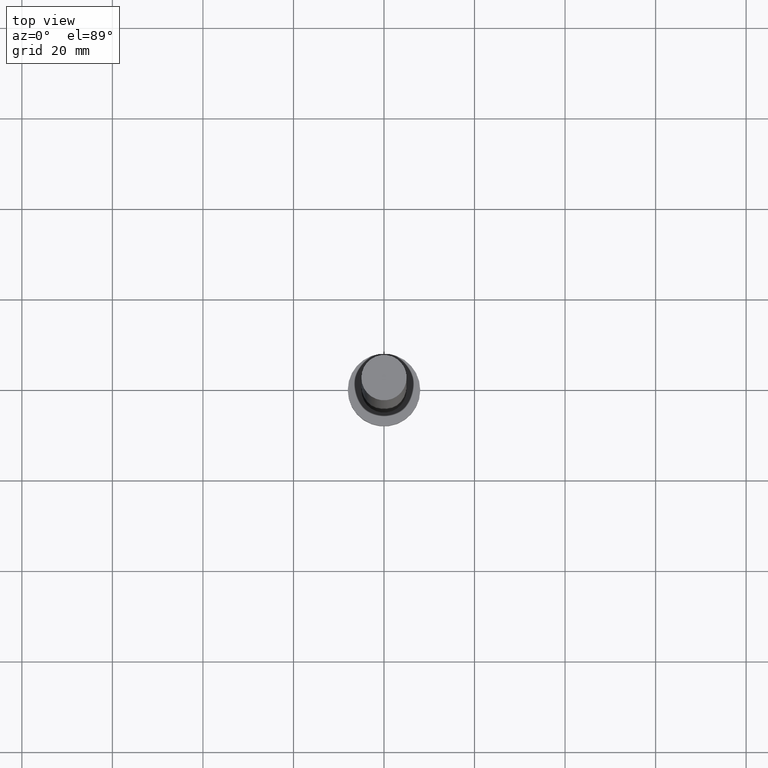
[diagram: clean part render]
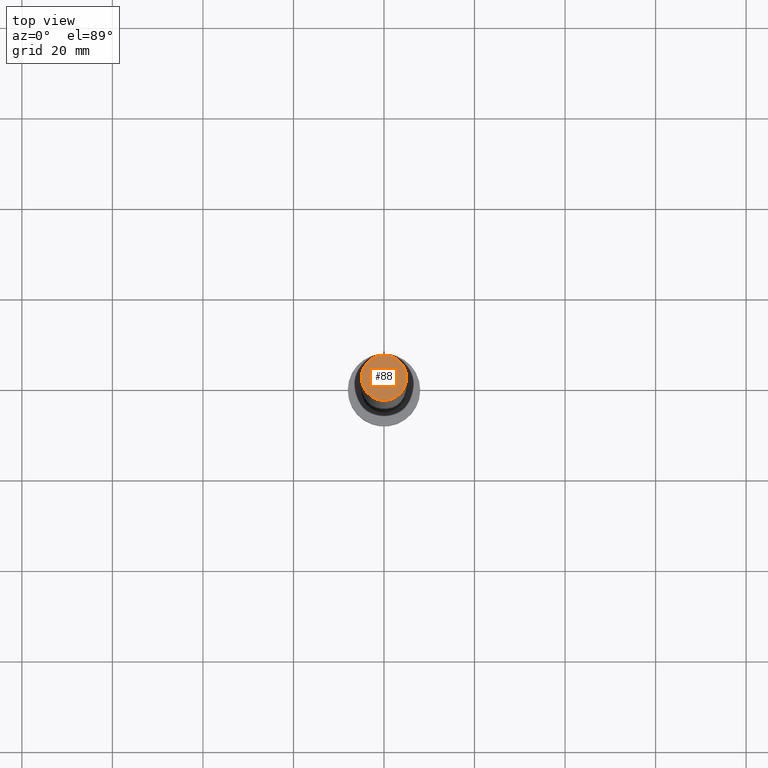
[diagram: same view with one face highlighted and labeled with its STEP entity id]
A machine part, top view. The second image highlights one B-rep face of the part: STEP entity #88.
In plain terms, the highlighted planar face has unit normal (0, 0, 1).
Its self-contained STEP definition (entity closure, byte-faithful):
#7 = ORIENTED_EDGE ( 'NONE', *, *, #150, .T. ) ;
#29 = ORIENTED_EDGE ( 'NONE', *, *, #64, .T. ) ;
#37 = DIRECTION ( 'NONE',  ( 0.000000000000000000, 0.000000000000000000, 1.000000000000000000 ) ) ;
#38 = CARTESIAN_POINT ( 'NONE',  ( 0.000000000000000000, 0.000000000000000000, 160.0000000000000000 ) ) ;
#56 = VERTEX_POINT ( 'NONE', #92 ) ;
#64 = EDGE_CURVE ( 'NONE', #56, #187, #161, .T. ) ;
#67 = AXIS2_PLACEMENT_3D ( 'NONE', #38, #37, #237 ) ;
#72 = EDGE_LOOP ( 'NONE', ( #7, #29 ) ) ;
#88 = ADVANCED_FACE ( 'NONE', ( #172 ), #245, .T. ) ;
#90 = AXIS2_PLACEMENT_3D ( 'NONE', #208, #244, #173 ) ;
#92 = CARTESIAN_POINT ( 'NONE',  ( 5.000000000000000000, 6.123233995736766282E-16, 160.0000000000000000 ) ) ;
#96 = CARTESIAN_POINT ( 'NONE',  ( 0.000000000000000000, 0.000000000000000000, 160.0000000000000000 ) ) ;
#122 = CIRCLE ( 'NONE', #67, 5.000000000000000000 ) ;
#150 = EDGE_CURVE ( 'NONE', #187, #56, #122, .T. ) ;
#157 = DIRECTION ( 'NONE',  ( 1.000000000000000000, 0.000000000000000000, -0.000000000000000000 ) ) ;
#161 = CIRCLE ( 'NONE', #90, 5.000000000000000000 ) ;
#172 = FACE_OUTER_BOUND ( 'NONE', #72, .T. ) ;
#173 = DIRECTION ( 'NONE',  ( 1.000000000000000000, 0.000000000000000000, 0.000000000000000000 ) ) ;
#184 = AXIS2_PLACEMENT_3D ( 'NONE', #96, #218, #157 ) ;
#187 = VERTEX_POINT ( 'NONE', #215 ) ;
#208 = CARTESIAN_POINT ( 'NONE',  ( 0.000000000000000000, 0.000000000000000000, 160.0000000000000000 ) ) ;
#215 = CARTESIAN_POINT ( 'NONE',  ( -5.000000000000000000, 0.000000000000000000, 160.0000000000000000 ) ) ;
#218 = DIRECTION ( 'NONE',  ( 0.000000000000000000, 0.000000000000000000, 1.000000000000000000 ) ) ;
#237 = DIRECTION ( 'NONE',  ( 1.000000000000000000, 0.000000000000000000, 0.000000000000000000 ) ) ;
#244 = DIRECTION ( 'NONE',  ( 0.000000000000000000, 0.000000000000000000, 1.000000000000000000 ) ) ;
#245 = PLANE ( 'NONE',  #184 ) ;